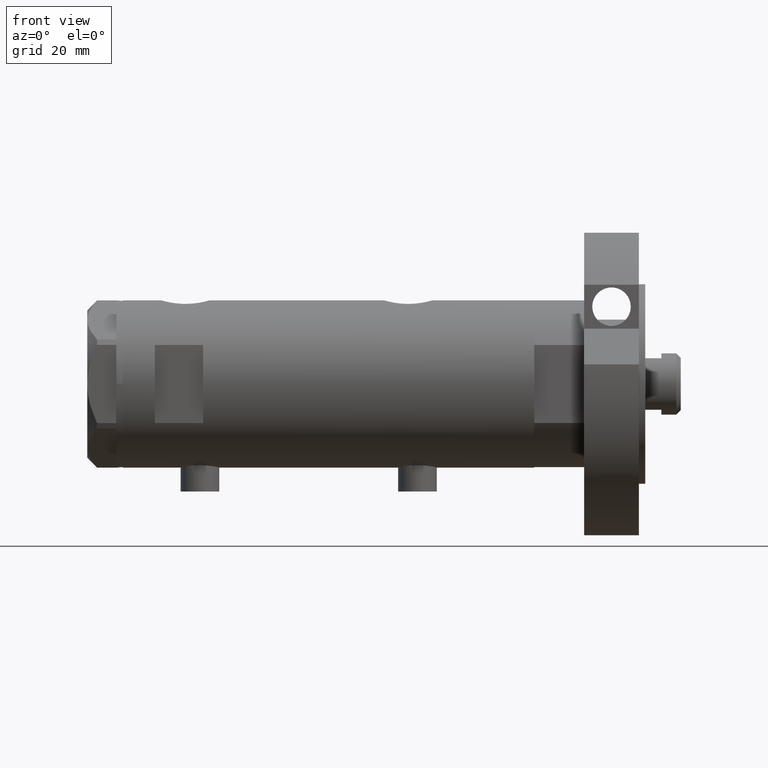
[diagram: clean part render]
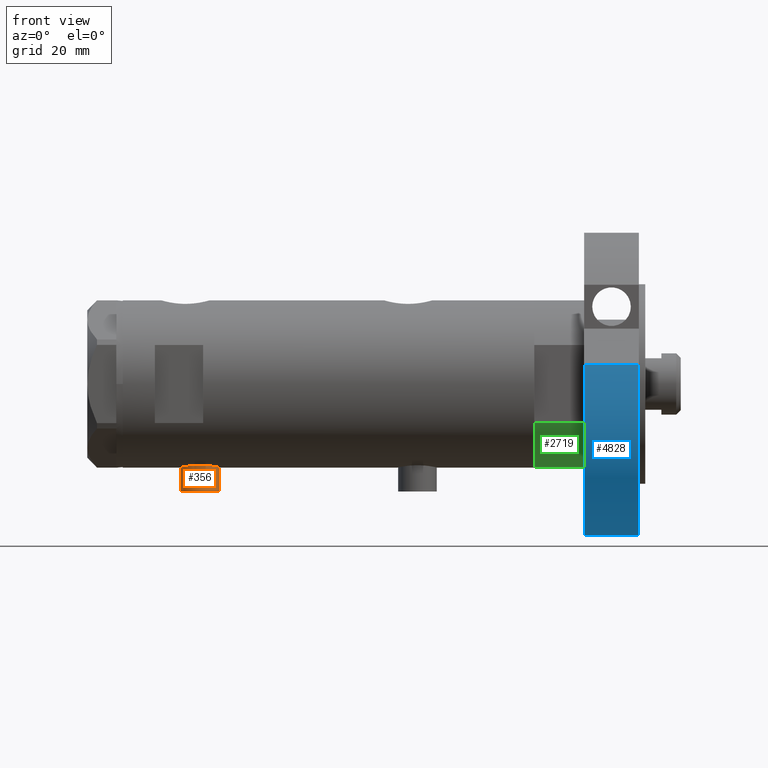
[diagram: same view with three faces highlighted in distinct colors, each labeled with its STEP entity id]
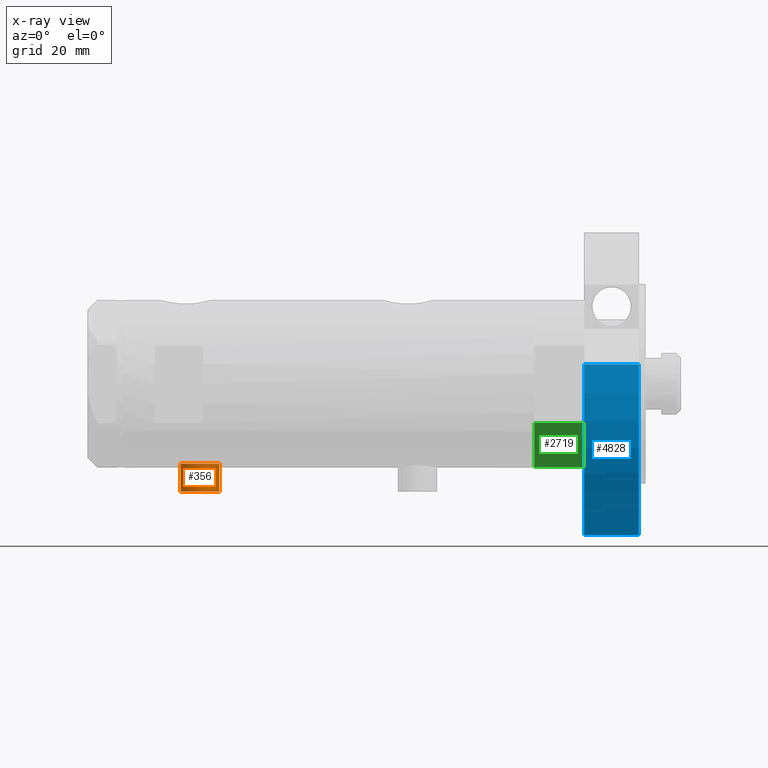
[diagram: x-ray of the same camera — body ghosted, the three highlighted faces saturated]
A machine part, front view with three faces highlighted in distinct colors.
The next image is the same camera in x-ray (body ghosted, the three faces saturated) — at least one of them is partly hidden behind the body in this view.
Their STEP definitions:

[orange] entity #356 — the highlighted cylindrical surface (edge-blend (fillet) strip) has radius 6 mm, axis along (0, 0, 1).
#356 = ADVANCED_FACE ( 'NONE', ( #5221 ), #2674, .T. ) ;
#684 = CARTESIAN_POINT ( 'NONE',  ( -24.80000000000000426, 7.347880794884107903E-16, 45.95000000000000284 ) ) ;
#842 = VERTEX_POINT ( 'NONE', #3826 ) ;
#1212 = DIRECTION ( 'NONE',  ( -1.000000000000000000, 0.000000000000000000, 0.000000000000000000 ) ) ;
#1259 = EDGE_CURVE ( 'NONE', #842, #4857, #6349, .T. ) ;
#1459 = ORIENTED_EDGE ( 'NONE', *, *, #2768, .F. ) ;
#1738 = DIRECTION ( 'NONE',  ( 0.000000000000000000, 0.000000000000000000, -1.000000000000000000 ) ) ;
#2049 = CIRCLE ( 'NONE', #3280, 5.999999999999998224 ) ;
#2283 = ORIENTED_EDGE ( 'NONE', *, *, #1259, .F. ) ;
#2309 = LINE ( 'NONE', #5148, #5137 ) ;
#2366 = AXIS2_PLACEMENT_3D ( 'NONE', #5325, #2806, #1738 ) ;
#2370 = VERTEX_POINT ( 'NONE', #3458 ) ;
#2674 = CYLINDRICAL_SURFACE ( 'NONE', #2366, 5.999999999999998224 ) ;
#2728 = EDGE_LOOP ( 'NONE', ( #2283, #1459, #3855, #4825 ) ) ;
#2768 = EDGE_CURVE ( 'NONE', #5777, #842, #6178, .T. ) ;
#2806 = DIRECTION ( 'NONE',  ( 1.000000000000000000, -0.000000000000000000, -0.000000000000000000 ) ) ;
#3011 = DIRECTION ( 'NONE',  ( -1.000000000000000000, 0.000000000000000000, 0.000000000000000000 ) ) ;
#3188 = DIRECTION ( 'NONE',  ( 0.000000000000000000, 0.000000000000000000, 1.000000000000000000 ) ) ;
#3280 = AXIS2_PLACEMENT_3D ( 'NONE', #3289, #1212, #3188 ) ;
#3289 = CARTESIAN_POINT ( 'NONE',  ( -24.80000000000000426, 0.000000000000000000, 39.95000000000000284 ) ) ;
#3440 = EDGE_CURVE ( 'NONE', #5777, #2370, #2309, .T. ) ;
#3458 = CARTESIAN_POINT ( 'NONE',  ( -24.80000000000000426, 0.000000000000000000, 33.95000000000000995 ) ) ;
#3508 = DIRECTION ( 'NONE',  ( 0.000000000000000000, 0.000000000000000000, 1.000000000000000000 ) ) ;
#3663 = AXIS2_PLACEMENT_3D ( 'NONE', #4558, #3011, #3508 ) ;
#3826 = CARTESIAN_POINT ( 'NONE',  ( -33.39999999999999858, 7.347880794884107903E-16, 45.95000000000000284 ) ) ;
#3846 = DIRECTION ( 'NONE',  ( 1.000000000000000000, -0.000000000000000000, -0.000000000000000000 ) ) ;
#3855 = ORIENTED_EDGE ( 'NONE', *, *, #3440, .T. ) ;
#4195 = DIRECTION ( 'NONE',  ( 1.000000000000000000, -0.000000000000000000, -0.000000000000000000 ) ) ;
#4558 = CARTESIAN_POINT ( 'NONE',  ( -33.39999999999999858, 0.000000000000000000, 39.95000000000000284 ) ) ;
#4825 = ORIENTED_EDGE ( 'NONE', *, *, #6416, .T. ) ;
#4857 = VERTEX_POINT ( 'NONE', #684 ) ;
#5080 = CARTESIAN_POINT ( 'NONE',  ( -33.39999999999999858, 0.000000000000000000, 33.95000000000000995 ) ) ;
#5137 = VECTOR ( 'NONE', #4195, 1000.000000000000000 ) ;
#5148 = CARTESIAN_POINT ( 'NONE',  ( -33.39999999999999858, 0.000000000000000000, 33.95000000000000995 ) ) ;
#5221 = FACE_OUTER_BOUND ( 'NONE', #2728, .T. ) ;
#5325 = CARTESIAN_POINT ( 'NONE',  ( -33.39999999999999858, 0.000000000000000000, 39.95000000000000284 ) ) ;
#5404 = VECTOR ( 'NONE', #3846, 1000.000000000000000 ) ;
#5752 = CARTESIAN_POINT ( 'NONE',  ( -33.39999999999999858, 7.347880794884111847E-16, 45.95000000000000284 ) ) ;
#5777 = VERTEX_POINT ( 'NONE', #5080 ) ;
#6178 = CIRCLE ( 'NONE', #3663, 5.999999999999998224 ) ;
#6349 = LINE ( 'NONE', #5752, #5404 ) ;
#6416 = EDGE_CURVE ( 'NONE', #2370, #4857, #2049, .T. ) ;

[blue] entity #4828 — the highlighted cylindrical surface (partial cylindrical patch) has radius 47 mm, axis along (-1, -0, 0).
#50 = CIRCLE ( 'NONE', #3608, 46.99999999999999289 ) ;
#142 = CARTESIAN_POINT ( 'NONE',  ( -46.99999999999999289, 0.000000000000000000, 0.000000000000000000 ) ) ;
#316 = EDGE_CURVE ( 'NONE', #2102, #2866, #50, .T. ) ;
#625 = CARTESIAN_POINT ( 'NONE',  ( -46.99999999999999289, 0.000000000000000000, 17.00000000000000000 ) ) ;
#831 = CARTESIAN_POINT ( 'NONE',  ( 6.092310621118299352, 46.60347359688769586, 0.000000000000000000 ) ) ;
#1078 = CARTESIAN_POINT ( 'NONE',  ( 0.000000000000000000, 0.000000000000000000, 0.000000000000000000 ) ) ;
#1291 = DIRECTION ( 'NONE',  ( -0.000000000000000000, -0.000000000000000000, -1.000000000000000000 ) ) ;
#1316 = DIRECTION ( 'NONE',  ( -0.000000000000000000, -0.000000000000000000, -1.000000000000000000 ) ) ;
#1821 = LINE ( 'NONE', #4182, #5237 ) ;
#2102 = VERTEX_POINT ( 'NONE', #6179 ) ;
#2285 = CARTESIAN_POINT ( 'NONE',  ( 0.000000000000000000, 0.000000000000000000, 17.00000000000000000 ) ) ;
#2423 = ORIENTED_EDGE ( 'NONE', *, *, #2880, .F. ) ;
#2579 = DIRECTION ( 'NONE',  ( 1.000000000000000000, 0.000000000000000000, 0.000000000000000000 ) ) ;
#2599 = ORIENTED_EDGE ( 'NONE', *, *, #6320, .T. ) ;
#2866 = VERTEX_POINT ( 'NONE', #625 ) ;
#2880 = EDGE_CURVE ( 'NONE', #2866, #5487, #1821, .T. ) ;
#2954 = VERTEX_POINT ( 'NONE', #831 ) ;
#3083 = ORIENTED_EDGE ( 'NONE', *, *, #6064, .F. ) ;
#3154 = ORIENTED_EDGE ( 'NONE', *, *, #316, .F. ) ;
#3255 = DIRECTION ( 'NONE',  ( -1.000000000000000000, 0.000000000000000000, 0.000000000000000000 ) ) ;
#3320 = EDGE_LOOP ( 'NONE', ( #2423, #3154, #3083, #2599 ) ) ;
#3386 = AXIS2_PLACEMENT_3D ( 'NONE', #1078, #6091, #2579 ) ;
#3608 = AXIS2_PLACEMENT_3D ( 'NONE', #2285, #4239, #5292 ) ;
#4099 = AXIS2_PLACEMENT_3D ( 'NONE', #4212, #1316, #3255 ) ;
#4182 = CARTESIAN_POINT ( 'NONE',  ( -46.99999999999999289, 0.000000000000000000, 17.00000000000000000 ) ) ;
#4212 = CARTESIAN_POINT ( 'NONE',  ( 0.000000000000000000, 0.000000000000000000, 17.00000000000000000 ) ) ;
#4239 = DIRECTION ( 'NONE',  ( 0.000000000000000000, 0.000000000000000000, 1.000000000000000000 ) ) ;
#4329 = CIRCLE ( 'NONE', #3386, 46.99999999999999289 ) ;
#4679 = CYLINDRICAL_SURFACE ( 'NONE', #4099, 46.99999999999999289 ) ;
#4828 = ADVANCED_FACE ( 'NONE', ( #5788 ), #4679, .T. ) ;
#5237 = VECTOR ( 'NONE', #1291, 1000.000000000000000 ) ;
#5292 = DIRECTION ( 'NONE',  ( 1.000000000000000000, 0.000000000000000000, 0.000000000000000000 ) ) ;
#5487 = VERTEX_POINT ( 'NONE', #142 ) ;
#5755 = CARTESIAN_POINT ( 'NONE',  ( 6.092310621118299352, 46.60347359688769586, 0.000000000000000000 ) ) ;
#5788 = FACE_OUTER_BOUND ( 'NONE', #3320, .T. ) ;
#6064 = EDGE_CURVE ( 'NONE', #2954, #2102, #6183, .T. ) ;
#6091 = DIRECTION ( 'NONE',  ( 0.000000000000000000, 0.000000000000000000, 1.000000000000000000 ) ) ;
#6179 = CARTESIAN_POINT ( 'NONE',  ( 6.092310621118299352, 46.60347359688769586, 17.00000000000000000 ) ) ;
#6183 = LINE ( 'NONE', #5755, #6220 ) ;
#6220 = VECTOR ( 'NONE', #6318, 1000.000000000000000 ) ;
#6318 = DIRECTION ( 'NONE',  ( -0.000000000000000000, -0.000000000000000000, 1.000000000000000000 ) ) ;
#6320 = EDGE_CURVE ( 'NONE', #2954, #5487, #4329, .T. ) ;

[green] entity #2719 — the highlighted cylindrical surface (partial cylindrical patch) has radius 26 mm, axis along (-1, -0, 0).
#234 = CARTESIAN_POINT ( 'NONE',  ( 12.12435565298215323, -22.99999999999999645, 0.000000000000000000 ) ) ;
#343 = DIRECTION ( 'NONE',  ( 1.000000000000000000, 0.000000000000000000, 0.000000000000000000 ) ) ;
#445 = EDGE_CURVE ( 'NONE', #6470, #4146, #1117, .T. ) ;
#511 = AXIS2_PLACEMENT_3D ( 'NONE', #3488, #3116, #5648 ) ;
#1117 = CIRCLE ( 'NONE', #1227, 26.00000000000000355 ) ;
#1123 = LINE ( 'NONE', #3102, #3493 ) ;
#1227 = AXIS2_PLACEMENT_3D ( 'NONE', #3385, #2868, #343 ) ;
#1238 = CIRCLE ( 'NONE', #3418, 26.00000000000000355 ) ;
#1599 = VECTOR ( 'NONE', #3137, 1000.000000000000000 ) ;
#1627 = CARTESIAN_POINT ( 'NONE',  ( 12.12435565298215323, 23.00000000000000355, 0.000000000000000000 ) ) ;
#1653 = DIRECTION ( 'NONE',  ( -0.000000000000000000, -0.000000000000000000, 1.000000000000000000 ) ) ;
#1688 = EDGE_CURVE ( 'NONE', #1900, #2626, #1238, .T. ) ;
#1900 = VERTEX_POINT ( 'NONE', #234 ) ;
#2626 = VERTEX_POINT ( 'NONE', #6239 ) ;
#2719 = ADVANCED_FACE ( 'NONE', ( #2738 ), #4732, .T. ) ;
#2738 = FACE_OUTER_BOUND ( 'NONE', #3301, .T. ) ;
#2767 = DIRECTION ( 'NONE',  ( 0.000000000000000000, 0.000000000000000000, 1.000000000000000000 ) ) ;
#2833 = CARTESIAN_POINT ( 'NONE',  ( 0.000000000000000000, 0.000000000000000000, 0.000000000000000000 ) ) ;
#2844 = EDGE_CURVE ( 'NONE', #2626, #4146, #6105, .T. ) ;
#2868 = DIRECTION ( 'NONE',  ( 0.000000000000000000, 0.000000000000000000, 1.000000000000000000 ) ) ;
#2983 = CARTESIAN_POINT ( 'NONE',  ( 12.12435565298215323, -22.99999999999999645, 15.50000000000000000 ) ) ;
#3102 = CARTESIAN_POINT ( 'NONE',  ( 12.12435565298215323, -22.99999999999999645, 0.000000000000000000 ) ) ;
#3116 = DIRECTION ( 'NONE',  ( -0.000000000000000000, -0.000000000000000000, -1.000000000000000000 ) ) ;
#3137 = DIRECTION ( 'NONE',  ( -0.000000000000000000, -0.000000000000000000, 1.000000000000000000 ) ) ;
#3301 = EDGE_LOOP ( 'NONE', ( #5707, #4008, #6186, #3649 ) ) ;
#3385 = CARTESIAN_POINT ( 'NONE',  ( 0.000000000000000000, 0.000000000000000000, 15.50000000000000000 ) ) ;
#3418 = AXIS2_PLACEMENT_3D ( 'NONE', #2833, #2767, #4263 ) ;
#3488 = CARTESIAN_POINT ( 'NONE',  ( 0.000000000000000000, 0.000000000000000000, 15.50000000000000000 ) ) ;
#3493 = VECTOR ( 'NONE', #1653, 1000.000000000000000 ) ;
#3649 = ORIENTED_EDGE ( 'NONE', *, *, #2844, .T. ) ;
#4008 = ORIENTED_EDGE ( 'NONE', *, *, #6007, .F. ) ;
#4146 = VERTEX_POINT ( 'NONE', #5300 ) ;
#4263 = DIRECTION ( 'NONE',  ( 1.000000000000000000, 0.000000000000000000, 0.000000000000000000 ) ) ;
#4732 = CYLINDRICAL_SURFACE ( 'NONE', #511, 26.00000000000000355 ) ;
#5300 = CARTESIAN_POINT ( 'NONE',  ( 12.12435565298214790, 23.00000000000000355, 15.50000000000000000 ) ) ;
#5648 = DIRECTION ( 'NONE',  ( -1.000000000000000000, 0.000000000000000000, 0.000000000000000000 ) ) ;
#5707 = ORIENTED_EDGE ( 'NONE', *, *, #445, .F. ) ;
#6007 = EDGE_CURVE ( 'NONE', #1900, #6470, #1123, .T. ) ;
#6105 = LINE ( 'NONE', #1627, #1599 ) ;
#6186 = ORIENTED_EDGE ( 'NONE', *, *, #1688, .T. ) ;
#6239 = CARTESIAN_POINT ( 'NONE',  ( 12.12435565298214080, 23.00000000000000355, 0.000000000000000000 ) ) ;
#6470 = VERTEX_POINT ( 'NONE', #2983 ) ;